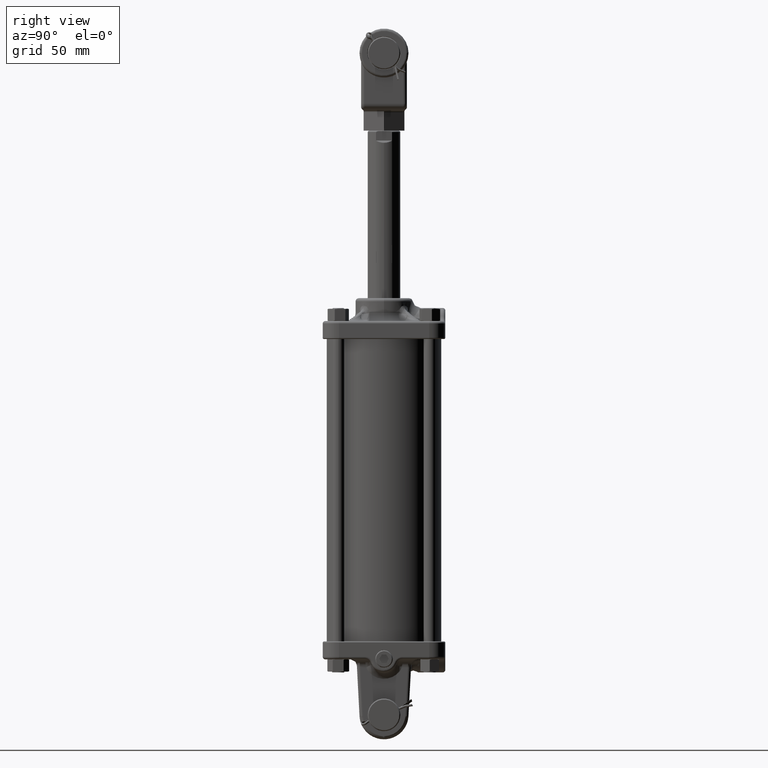
[diagram: clean part render]
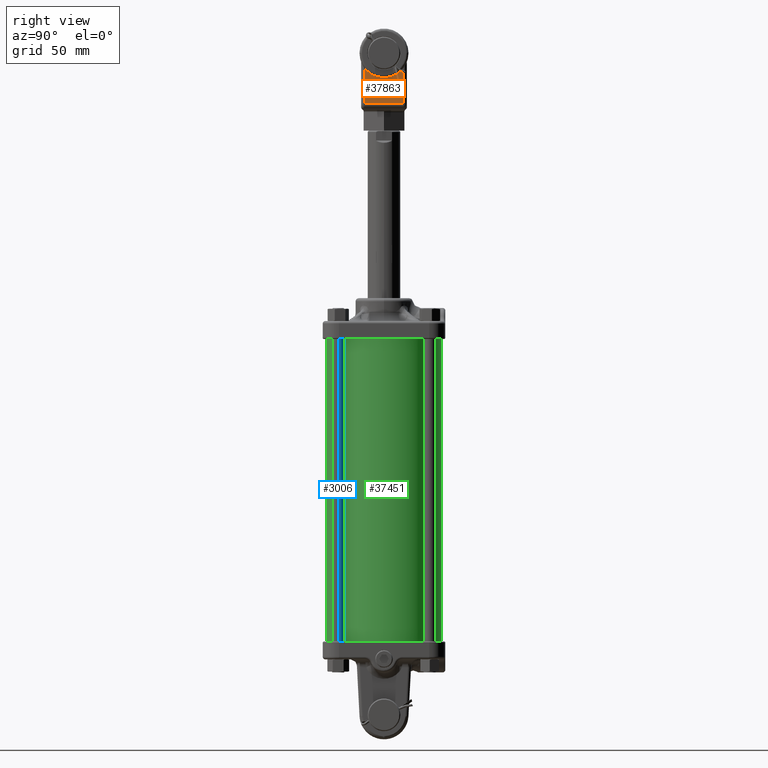
[diagram: same view with three faces highlighted in distinct colors, each labeled with its STEP entity id]
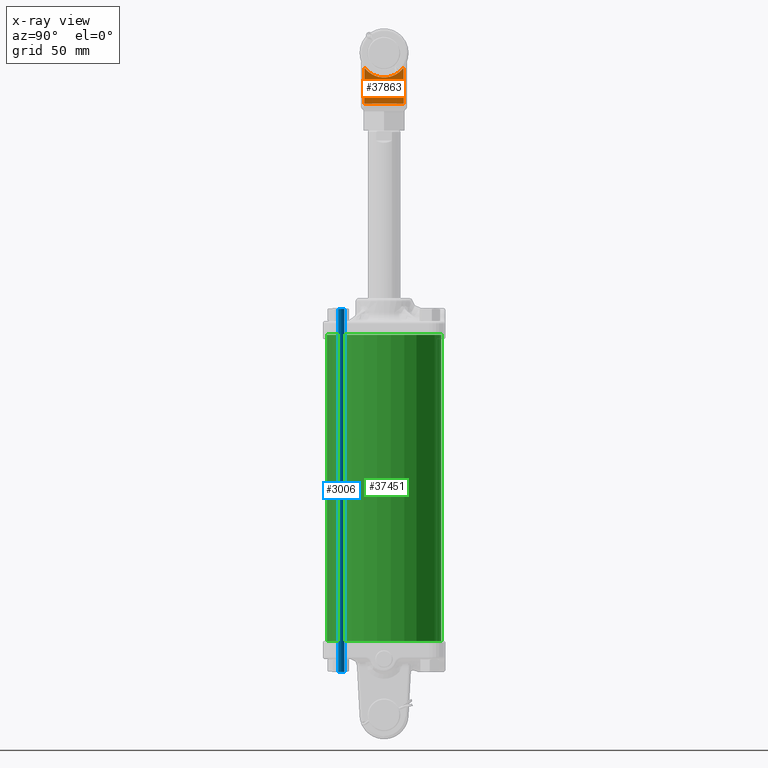
[diagram: x-ray of the same camera — body ghosted, the three highlighted faces saturated]
A machine part, right view with three faces highlighted in distinct colors.
The next image is the same camera in x-ray (body ghosted, the three faces saturated) — at least one of them is partly hidden behind the body in this view.
Their STEP definitions:

[orange] entity #37863 — the highlighted planar face has unit normal (-1, 0, -0).
#739 = CARTESIAN_POINT ( 'NONE',  ( -1.163500000000000201, -1.550000000000000044, -0.5999999999999998668 ) ) ;
#1666 = LINE ( 'NONE', #12299, #7591 ) ;
#1922 = CARTESIAN_POINT ( 'NONE',  ( -1.163499999999999979, -0.4500000000000002331, 0.5999999999999998668 ) ) ;
#1923 = VECTOR ( 'NONE', #10364, 39.37007874015748143 ) ;
#2355 = CARTESIAN_POINT ( 'NONE',  ( -1.163499999999999979, 0.000000000000000000, 0.000000000000000000 ) ) ;
#2437 = ORIENTED_EDGE ( 'NONE', *, *, #27808, .F. ) ;
#3433 = LINE ( 'NONE', #24008, #1923 ) ;
#3883 = CARTESIAN_POINT ( 'NONE',  ( -1.163499999999999979, -0.4500000000000002331, -0.5999999999999998668 ) ) ;
#3939 = CIRCLE ( 'NONE', #7630, 0.7500000000000001110 ) ;
#7591 = VECTOR ( 'NONE', #15296, 39.37007874015748143 ) ;
#7630 = AXIS2_PLACEMENT_3D ( 'NONE', #2355, #37675, #12753 ) ;
#10364 = DIRECTION ( 'NONE',  ( 0.000000000000000000, 0.000000000000000000, -1.000000000000000000 ) ) ;
#11935 = VERTEX_POINT ( 'NONE', #1922 ) ;
#12299 = CARTESIAN_POINT ( 'NONE',  ( -1.163500000000000201, -1.550000000000000044, 0.5999999999999998668 ) ) ;
#12753 = DIRECTION ( 'NONE',  ( 1.821231995776175232E-16, 1.000000000000000000, 0.000000000000000000 ) ) ;
#15296 = DIRECTION ( 'NONE',  ( -1.127634965943233083E-16, -1.000000000000000000, -0.000000000000000000 ) ) ;
#15951 = PLANE ( 'NONE',  #22546 ) ;
#16531 = ORIENTED_EDGE ( 'NONE', *, *, #38818, .F. ) ;
#18161 = CARTESIAN_POINT ( 'NONE',  ( -1.163500000000000201, -1.550000000000000044, -0.5999999999999998668 ) ) ;
#18729 = FACE_OUTER_BOUND ( 'NONE', #22468, .T. ) ;
#19180 = DIRECTION ( 'NONE',  ( -1.127634965943233083E-16, -1.000000000000000000, 0.000000000000000000 ) ) ;
#21834 = LINE ( 'NONE', #18161, #27657 ) ;
#22468 = EDGE_LOOP ( 'NONE', ( #2437, #40592, #24436, #16531 ) ) ;
#22546 = AXIS2_PLACEMENT_3D ( 'NONE', #36024, #30015, #19180 ) ;
#23164 = CARTESIAN_POINT ( 'NONE',  ( -1.163500000000000201, -1.550000000000000044, 0.5999999999999998668 ) ) ;
#24008 = CARTESIAN_POINT ( 'NONE',  ( -1.163500000000000201, -1.550000000000000044, 0.6999999999999999556 ) ) ;
#24436 = ORIENTED_EDGE ( 'NONE', *, *, #41490, .T. ) ;
#24489 = VERTEX_POINT ( 'NONE', #739 ) ;
#27657 = VECTOR ( 'NONE', #28530, 39.37007874015748143 ) ;
#27808 = EDGE_CURVE ( 'NONE', #11935, #36664, #1666, .T. ) ;
#28070 = EDGE_CURVE ( 'NONE', #11935, #41007, #3939, .T. ) ;
#28530 = DIRECTION ( 'NONE',  ( -1.127634965943233083E-16, -1.000000000000000000, -0.000000000000000000 ) ) ;
#30015 = DIRECTION ( 'NONE',  ( 1.000000000000000000, -1.127634965943233083E-16, 0.000000000000000000 ) ) ;
#36024 = CARTESIAN_POINT ( 'NONE',  ( -1.163499999999999979, -0.5386824743062338383, 0.6999999999999999556 ) ) ;
#36664 = VERTEX_POINT ( 'NONE', #23164 ) ;
#37675 = DIRECTION ( 'NONE',  ( 1.000000000000000000, -1.127634965943233083E-16, 0.000000000000000000 ) ) ;
#37863 = ADVANCED_FACE ( 'NONE', ( #18729 ), #15951, .F. ) ;
#38818 = EDGE_CURVE ( 'NONE', #36664, #24489, #3433, .T. ) ;
#40592 = ORIENTED_EDGE ( 'NONE', *, *, #28070, .T. ) ;
#41007 = VERTEX_POINT ( 'NONE', #3883 ) ;
#41490 = EDGE_CURVE ( 'NONE', #41007, #24489, #21834, .T. ) ;

[blue] entity #3006 — the highlighted cylindrical surface (edge-blend (fillet) strip) has radius 4.7625 mm, axis along (-0, 0, 1).
#465 = ORIENTED_EDGE ( 'NONE', *, *, #12347, .T. ) ;
#2398 = DIRECTION ( 'NONE',  ( 1.000000000000000000, 0.000000000000000000, 0.000000000000000000 ) ) ;
#2484 = AXIS2_PLACEMENT_3D ( 'NONE', #24425, #31567, #17934 ) ;
#3006 = ADVANCED_FACE ( 'NONE', ( #30322 ), #34016, .T. ) ;
#3085 = LINE ( 'NONE', #24557, #3311 ) ;
#3311 = VECTOR ( 'NONE', #6551, 39.37007874015748143 ) ;
#4293 = VERTEX_POINT ( 'NONE', #9995 ) ;
#5199 = EDGE_CURVE ( 'NONE', #4293, #44590, #3085, .T. ) ;
#6165 = CIRCLE ( 'NONE', #2484, 0.1875000000000001110 ) ;
#6359 = ORIENTED_EDGE ( 'NONE', *, *, #21102, .T. ) ;
#6551 = DIRECTION ( 'NONE',  ( -9.999999999999998558E-17, 0.000000000000000000, 1.000000000000000000 ) ) ;
#8822 = CARTESIAN_POINT ( 'NONE',  ( 1.192499999999998117, 1.379999999999976579, 0.3866666666666525032 ) ) ;
#9489 = ORIENTED_EDGE ( 'NONE', *, *, #5199, .F. ) ;
#9650 = DIRECTION ( 'NONE',  ( -9.999999999999998558E-17, 0.000000000000000000, 1.000000000000000000 ) ) ;
#9995 = CARTESIAN_POINT ( 'NONE',  ( 1.192499999999999227, 1.379999999999976579, -10.73333333333334316 ) ) ;
#10143 = DIRECTION ( 'NONE',  ( 1.000000000000000000, 0.000000000000000000, 0.000000000000000000 ) ) ;
#12347 = EDGE_CURVE ( 'NONE', #16816, #35028, #27195, .T. ) ;
#14296 = ORIENTED_EDGE ( 'NONE', *, *, #23709, .F. ) ;
#16816 = VERTEX_POINT ( 'NONE', #31479 ) ;
#17030 = CARTESIAN_POINT ( 'NONE',  ( 1.567499999999998339, 1.379999999999976579, 1.374999999999999334 ) ) ;
#17934 = DIRECTION ( 'NONE',  ( 1.000000000000000000, 0.000000000000000000, 0.000000000000000000 ) ) ;
#21102 = EDGE_CURVE ( 'NONE', #35028, #44590, #39206, .T. ) ;
#23408 = AXIS2_PLACEMENT_3D ( 'NONE', #31015, #37712, #2398 ) ;
#23709 = EDGE_CURVE ( 'NONE', #16816, #4293, #6165, .T. ) ;
#24425 = CARTESIAN_POINT ( 'NONE',  ( 1.379999999999999227, 1.379999999999976579, -10.73333333333334316 ) ) ;
#24497 = AXIS2_PLACEMENT_3D ( 'NONE', #34602, #44532, #10143 ) ;
#24557 = CARTESIAN_POINT ( 'NONE',  ( 1.192499999999998117, 1.379999999999976579, 1.374999999999999334 ) ) ;
#27195 = LINE ( 'NONE', #17030, #37005 ) ;
#30322 = FACE_OUTER_BOUND ( 'NONE', #39184, .T. ) ;
#31015 = CARTESIAN_POINT ( 'NONE',  ( 1.379999999999998117, 1.379999999999976579, 1.374999999999999334 ) ) ;
#31479 = CARTESIAN_POINT ( 'NONE',  ( 1.567499999999999227, 1.379999999999976579, -10.73333333333334316 ) ) ;
#31567 = DIRECTION ( 'NONE',  ( 1.041488005239604349E-16, -9.991390020518845876E-17, -1.000000000000000000 ) ) ;
#34016 = CYLINDRICAL_SURFACE ( 'NONE', #23408, 0.1875000000000001110 ) ;
#34602 = CARTESIAN_POINT ( 'NONE',  ( 1.379999999999998117, 1.379999999999976579, 0.3866666666666525032 ) ) ;
#35028 = VERTEX_POINT ( 'NONE', #45258 ) ;
#37005 = VECTOR ( 'NONE', #9650, 39.37007874015748143 ) ;
#37712 = DIRECTION ( 'NONE',  ( -9.999999999999999791E-17, 0.000000000000000000, 1.000000000000000000 ) ) ;
#39184 = EDGE_LOOP ( 'NONE', ( #9489, #14296, #465, #6359 ) ) ;
#39206 = CIRCLE ( 'NONE', #24497, 0.1875000000000001110 ) ;
#44532 = DIRECTION ( 'NONE',  ( -0.000000000000000000, -0.000000000000000000, -1.000000000000000000 ) ) ;
#44590 = VERTEX_POINT ( 'NONE', #8822 ) ;
#45258 = CARTESIAN_POINT ( 'NONE',  ( 1.567499999999998339, 1.379999999999976579, 0.3866666666666525032 ) ) ;

[green] entity #37451 — the highlighted cylindrical surface (partial cylindrical patch) has radius 44.45 mm, axis along (0, 0, 1).
#1613 = AXIS2_PLACEMENT_3D ( 'NONE', #37616, #30222, #44545 ) ;
#4014 = CARTESIAN_POINT ( 'NONE',  ( 1.749999999999999556, 0.000000000000000000, 0.000000000000000000 ) ) ;
#4231 = DIRECTION ( 'NONE',  ( 0.000000000000000000, 0.000000000000000000, 1.000000000000000000 ) ) ;
#4778 = EDGE_CURVE ( 'NONE', #42976, #24839, #35366, .T. ) ;
#4914 = CARTESIAN_POINT ( 'NONE',  ( -1.749999999999999556, 2.143131898507867804E-16, -9.375000000000000000 ) ) ;
#5409 = CARTESIAN_POINT ( 'NONE',  ( 1.749999999999999556, 0.000000000000000000, -14.44974746830583179 ) ) ;
#12855 = VERTEX_POINT ( 'NONE', #4014 ) ;
#13966 = CYLINDRICAL_SURFACE ( 'NONE', #24740, 1.749999999999999556 ) ;
#14850 = DIRECTION ( 'NONE',  ( 1.000000000000000000, 0.000000000000000000, 0.000000000000000000 ) ) ;
#15472 = VERTEX_POINT ( 'NONE', #24775 ) ;
#16245 = AXIS2_PLACEMENT_3D ( 'NONE', #32727, #42875, #43116 ) ;
#17784 = CARTESIAN_POINT ( 'NONE',  ( 1.749999999999999556, 0.000000000000000000, -9.375000000000000000 ) ) ;
#17961 = LINE ( 'NONE', #42650, #30685 ) ;
#20967 = EDGE_LOOP ( 'NONE', ( #36496, #45033, #25168, #41294 ) ) ;
#22099 = DIRECTION ( 'NONE',  ( 0.000000000000000000, 0.000000000000000000, 1.000000000000000000 ) ) ;
#24740 = AXIS2_PLACEMENT_3D ( 'NONE', #35856, #4231, #14850 ) ;
#24775 = CARTESIAN_POINT ( 'NONE',  ( -1.749999999999999556, 2.143131898507867804E-16, 0.000000000000000000 ) ) ;
#24839 = VERTEX_POINT ( 'NONE', #17784 ) ;
#25168 = ORIENTED_EDGE ( 'NONE', *, *, #39508, .F. ) ;
#30222 = DIRECTION ( 'NONE',  ( 0.000000000000000000, 0.000000000000000000, 1.000000000000000000 ) ) ;
#30685 = VECTOR ( 'NONE', #22099, 39.37007874015748143 ) ;
#32166 = FACE_OUTER_BOUND ( 'NONE', #20967, .T. ) ;
#32727 = CARTESIAN_POINT ( 'NONE',  ( 0.000000000000000000, 0.000000000000000000, -9.375000000000000000 ) ) ;
#33584 = DIRECTION ( 'NONE',  ( 0.000000000000000000, 0.000000000000000000, 1.000000000000000000 ) ) ;
#34085 = CIRCLE ( 'NONE', #1613, 1.749999999999999556 ) ;
#35366 = CIRCLE ( 'NONE', #16245, 1.749999999999999556 ) ;
#35856 = CARTESIAN_POINT ( 'NONE',  ( 0.000000000000000000, 0.000000000000000000, -14.44974746830583179 ) ) ;
#36496 = ORIENTED_EDGE ( 'NONE', *, *, #4778, .F. ) ;
#37032 = LINE ( 'NONE', #5409, #38846 ) ;
#37451 = ADVANCED_FACE ( 'NONE', ( #32166 ), #13966, .T. ) ;
#37616 = CARTESIAN_POINT ( 'NONE',  ( 0.000000000000000000, 0.000000000000000000, 0.000000000000000000 ) ) ;
#38846 = VECTOR ( 'NONE', #33584, 39.37007874015748143 ) ;
#38877 = EDGE_CURVE ( 'NONE', #42976, #15472, #17961, .T. ) ;
#39508 = EDGE_CURVE ( 'NONE', #12855, #15472, #34085, .T. ) ;
#41294 = ORIENTED_EDGE ( 'NONE', *, *, #44259, .F. ) ;
#42650 = CARTESIAN_POINT ( 'NONE',  ( -1.749999999999999556, 2.143131898507867804E-16, -14.44974746830583179 ) ) ;
#42875 = DIRECTION ( 'NONE',  ( -0.000000000000000000, -0.000000000000000000, -1.000000000000000000 ) ) ;
#42976 = VERTEX_POINT ( 'NONE', #4914 ) ;
#43116 = DIRECTION ( 'NONE',  ( 1.000000000000000000, 0.000000000000000000, 0.000000000000000000 ) ) ;
#44259 = EDGE_CURVE ( 'NONE', #24839, #12855, #37032, .T. ) ;
#44545 = DIRECTION ( 'NONE',  ( 1.000000000000000000, 0.000000000000000000, 0.000000000000000000 ) ) ;
#45033 = ORIENTED_EDGE ( 'NONE', *, *, #38877, .T. ) ;